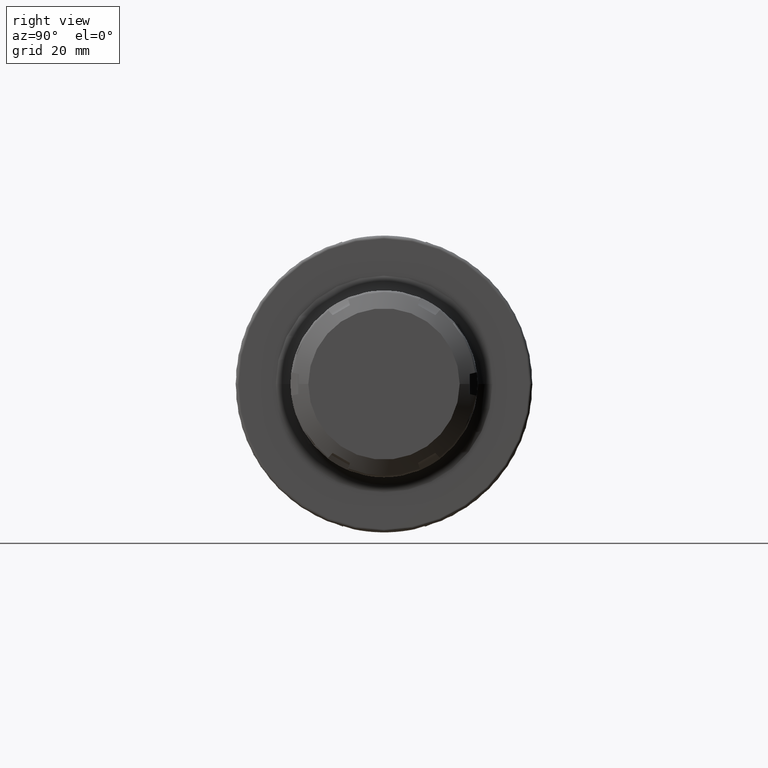
[diagram: clean part render]
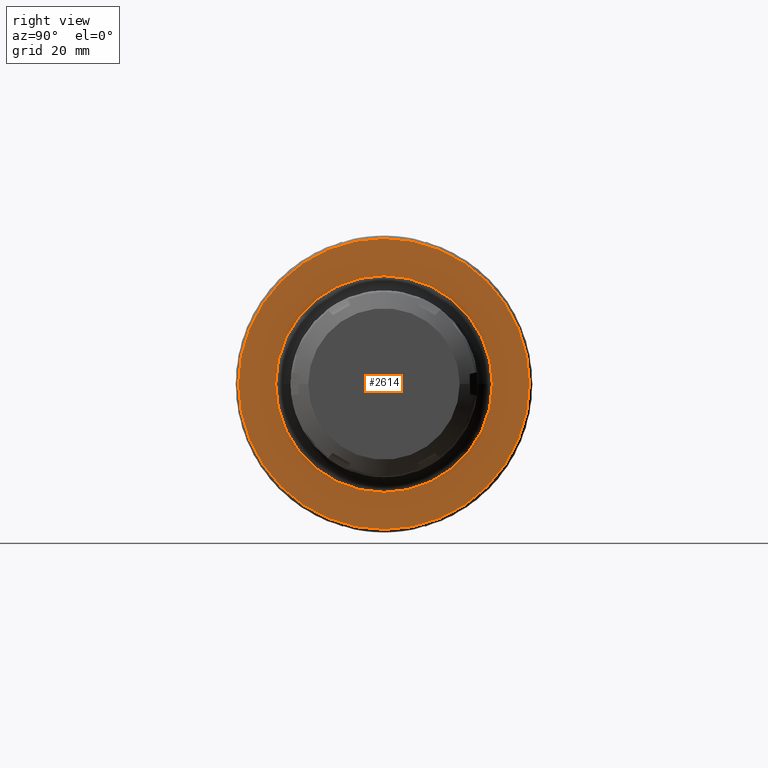
[diagram: same view with one face highlighted and labeled with its STEP entity id]
A machine part, right view. The second image highlights one B-rep face of the part: STEP entity #2614.
In plain terms, the highlighted planar face has unit normal (1, 0, 0).
Its self-contained STEP definition (entity closure, byte-faithful):
#814=CARTESIAN_POINT('',(3.8E1,0.E0,0.E0));
#815=DIRECTION('',(1.E0,0.E0,0.E0));
#816=DIRECTION('',(0.E0,1.E0,0.E0));
#817=AXIS2_PLACEMENT_3D('',#814,#815,#816);
#829=CARTESIAN_POINT('',(3.8E1,0.E0,0.E0));
#830=DIRECTION('',(-1.E0,0.E0,0.E0));
#831=DIRECTION('',(0.E0,1.E0,0.E0));
#832=AXIS2_PLACEMENT_3D('',#829,#830,#831);
#834=CARTESIAN_POINT('',(3.8E1,0.E0,0.E0));
#835=DIRECTION('',(1.E0,0.E0,0.E0));
#836=DIRECTION('',(0.E0,-1.E0,0.E0));
#837=AXIS2_PLACEMENT_3D('',#834,#835,#836);
#839=CARTESIAN_POINT('',(3.8E1,0.E0,0.E0));
#840=DIRECTION('',(1.E0,0.E0,0.E0));
#841=DIRECTION('',(0.E0,1.E0,0.E0));
#842=AXIS2_PLACEMENT_3D('',#839,#840,#841);
#1358=CARTESIAN_POINT('',(3.8E1,4.89875E1,0.E0));
#1359=VERTEX_POINT('',#1358);
#1360=CARTESIAN_POINT('',(3.8E1,-4.89875E1,-1.199847701465E-14));
#1361=VERTEX_POINT('',#1360);
#1463=CARTESIAN_POINT('',(3.8E1,-3.65E1,0.E0));
#1464=CARTESIAN_POINT('',(3.8E1,3.65E1,0.E0));
#1465=VERTEX_POINT('',#1463);
#1466=VERTEX_POINT('',#1464);
#2599=CARTESIAN_POINT('',(3.8E1,0.E0,0.E0));
#2600=DIRECTION('',(1.E0,0.E0,0.E0));
#2601=DIRECTION('',(0.E0,-1.E0,0.E0));
#2602=AXIS2_PLACEMENT_3D('',#2599,#2600,#2601);
#2603=PLANE('',#2602);
#2604=ORIENTED_EDGE('',*,*,#2594,.T.);
#2605=ORIENTED_EDGE('',*,*,#2578,.F.);
#2606=EDGE_LOOP('',(#2604,#2605));
#2607=FACE_OUTER_BOUND('',#2606,.F.);
#2609=ORIENTED_EDGE('',*,*,#2608,.T.);
#2611=ORIENTED_EDGE('',*,*,#2610,.T.);
#2612=EDGE_LOOP('',(#2609,#2611));
#2613=FACE_BOUND('',#2612,.F.);
#2614=ADVANCED_FACE('',(#2607,#2613),#2603,.T.);
#818=CIRCLE('',#817,4.89875E1);
#833=CIRCLE('',#832,4.89875E1);
#838=CIRCLE('',#837,3.65E1);
#843=CIRCLE('',#842,3.65E1);
#2578=EDGE_CURVE('',#1359,#1361,#818,.T.);
#2594=EDGE_CURVE('',#1359,#1361,#833,.T.);
#2608=EDGE_CURVE('',#1465,#1466,#838,.T.);
#2610=EDGE_CURVE('',#1466,#1465,#843,.T.);